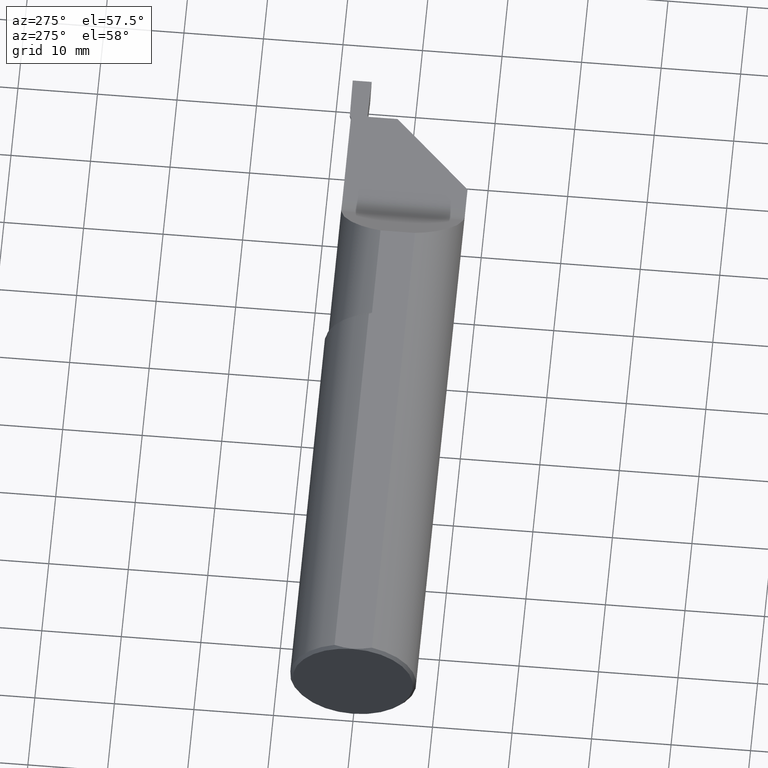
[diagram: clean part render]
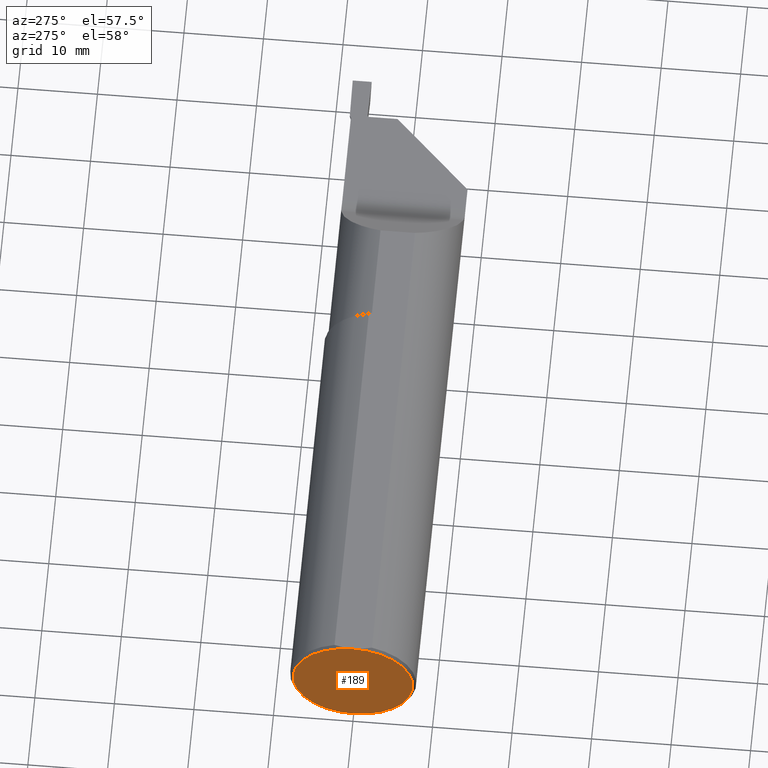
[diagram: same view with one face highlighted and labeled with its STEP entity id]
A machine part, auxiliary view. The second image highlights one B-rep face of the part: STEP entity #189.
In plain terms, the highlighted planar face has unit normal (1, 0, 0).
Its self-contained STEP definition (entity closure, byte-faithful):
#78 = AXIS2_PLACEMENT_3D ( 'NONE', #834, #126, #119 ) ;
#84 = DIRECTION ( 'NONE',  ( -1.000000000000000000, -0.000000000000000000, -0.000000000000000000 ) ) ;
#119 = DIRECTION ( 'NONE',  ( 0.000000000000000000, 0.000000000000000000, -1.000000000000000000 ) ) ;
#122 = EDGE_CURVE ( 'NONE', #517, #494, #240, .T. ) ;
#126 = DIRECTION ( 'NONE',  ( 1.000000000000000000, 0.000000000000000000, 0.000000000000000000 ) ) ;
#130 = FACE_OUTER_BOUND ( 'NONE', #814, .T. ) ;
#189 = ADVANCED_FACE ( 'NONE', ( #130 ), #549, .F. ) ;
#227 = AXIS2_PLACEMENT_3D ( 'NONE', #833, #84, #364 ) ;
#240 = CIRCLE ( 'NONE', #633, 0.2973499999999995036 ) ;
#252 = CIRCLE ( 'NONE', #227, 0.2973499999999995036 ) ;
#266 = DIRECTION ( 'NONE',  ( 0.000000000000000000, 0.000000000000000000, -1.000000000000000000 ) ) ;
#324 = CARTESIAN_POINT ( 'NONE',  ( 0.000000000000000000, 0.000000000000000000, -0.2973499999999995036 ) ) ;
#364 = DIRECTION ( 'NONE',  ( 0.000000000000000000, 0.000000000000000000, -1.000000000000000000 ) ) ;
#419 = DIRECTION ( 'NONE',  ( -1.000000000000000000, -0.000000000000000000, -0.000000000000000000 ) ) ;
#494 = VERTEX_POINT ( 'NONE', #580 ) ;
#517 = VERTEX_POINT ( 'NONE', #324 ) ;
#549 = PLANE ( 'NONE',  #78 ) ;
#580 = CARTESIAN_POINT ( 'NONE',  ( 0.000000000000000000, 3.641487257264648486E-17, 0.2973499999999995036 ) ) ;
#633 = AXIS2_PLACEMENT_3D ( 'NONE', #690, #419, #266 ) ;
#681 = EDGE_CURVE ( 'NONE', #494, #517, #252, .T. ) ;
#690 = CARTESIAN_POINT ( 'NONE',  ( 0.000000000000000000, 0.000000000000000000, 0.000000000000000000 ) ) ;
#781 = ORIENTED_EDGE ( 'NONE', *, *, #681, .T. ) ;
#814 = EDGE_LOOP ( 'NONE', ( #828, #781 ) ) ;
#828 = ORIENTED_EDGE ( 'NONE', *, *, #122, .T. ) ;
#833 = CARTESIAN_POINT ( 'NONE',  ( 0.000000000000000000, 0.000000000000000000, 0.000000000000000000 ) ) ;
#834 = CARTESIAN_POINT ( 'NONE',  ( 0.000000000000000000, 0.000000000000000000, 0.000000000000000000 ) ) ;